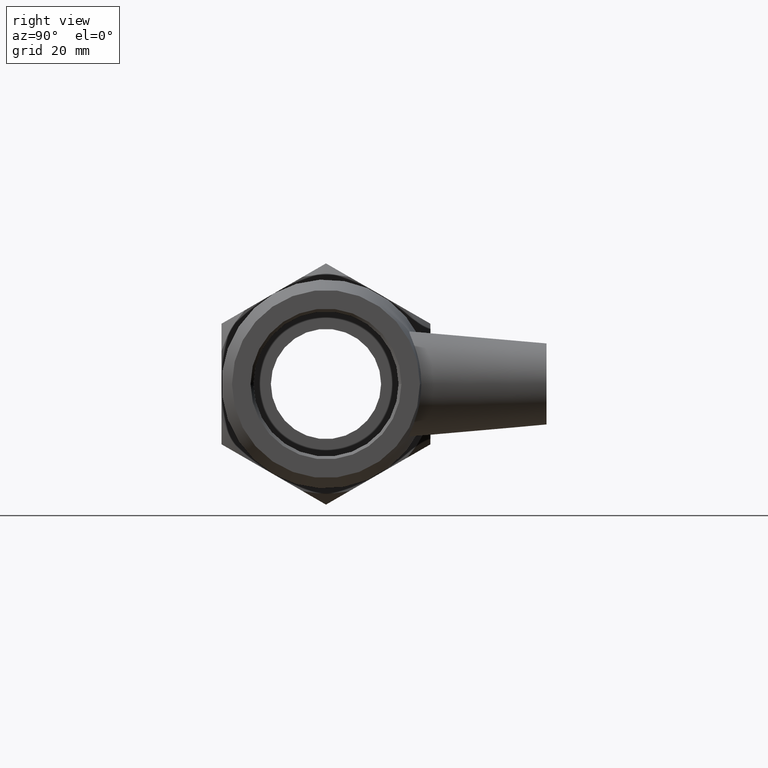
[diagram: clean part render]
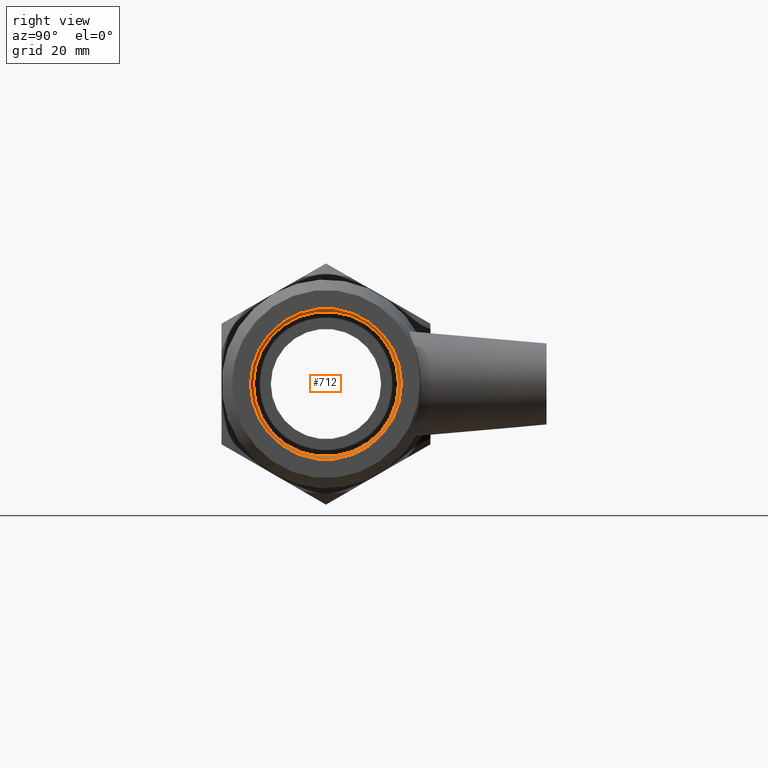
[diagram: same view with one face highlighted and labeled with its STEP entity id]
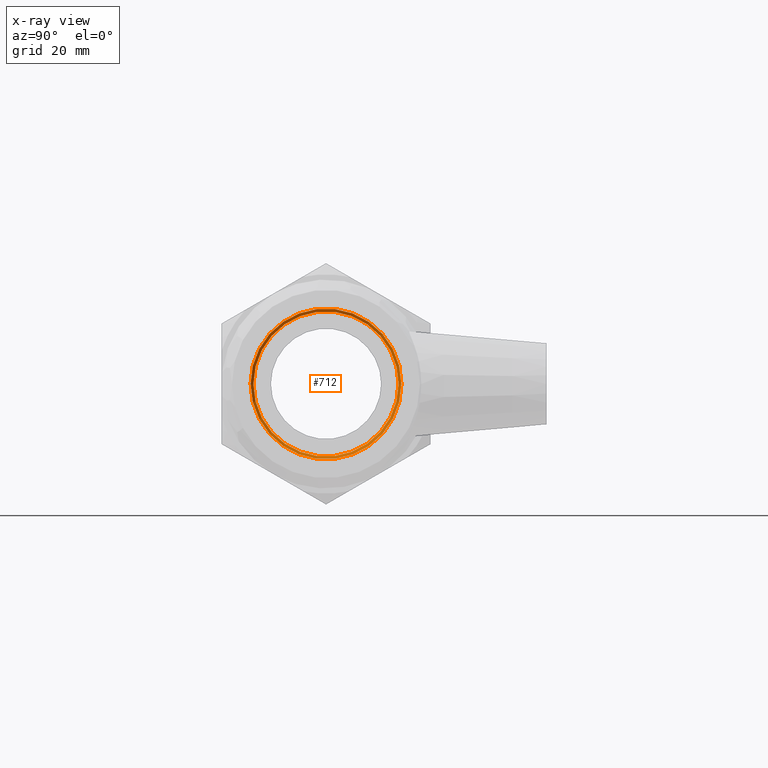
[diagram: x-ray of the same camera — body ghosted, the highlighted face saturated]
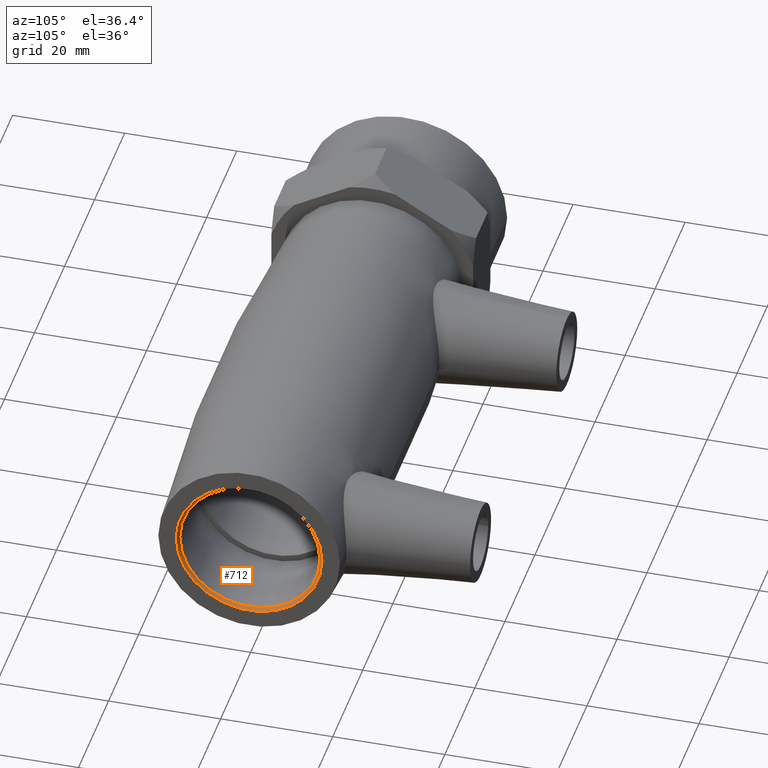
[diagram: same view with one face highlighted and labeled with its STEP entity id]
A machine part, right view. The second image highlights one B-rep face of the part: STEP entity #712.
The next image is the same camera in x-ray: the body ghosted, the highlighted face saturated — about 0% of this face is hidden behind the body in this view.
A second angle (auxiliary view) of the same face is appended — the face is thin or edge-on in the first view.
In plain terms, the highlighted conical surface has half-angle 45 deg.
Its self-contained STEP definition (entity closure, byte-faithful):
#123=FACE_BOUND('',#208,.T.);
#153=FACE_OUTER_BOUND('',#207,.T.);
#207=EDGE_LOOP('',(#502));
#208=EDGE_LOOP('',(#503));
#291=CIRCLE('',#769,13.);
#292=CIRCLE('',#770,12.5);
#336=VERTEX_POINT('',#1093);
#337=VERTEX_POINT('',#1095);
#407=EDGE_CURVE('',#336,#336,#291,.T.);
#408=EDGE_CURVE('',#337,#337,#292,.T.);
#502=ORIENTED_EDGE('',*,*,#407,.T.);
#503=ORIENTED_EDGE('',*,*,#408,.T.);
#692=CONICAL_SURFACE('',#768,12.75,45.0000000000001);
#712=ADVANCED_FACE('',(#153,#123),#692,.F.);
#768=AXIS2_PLACEMENT_3D('',#1092,#869,#870);
#769=AXIS2_PLACEMENT_3D('',#1094,#871,#872);
#770=AXIS2_PLACEMENT_3D('',#1096,#873,#874);
#869=DIRECTION('center_axis',(1.,0.,0.));
#870=DIRECTION('ref_axis',(0.,-1.,0.));
#871=DIRECTION('center_axis',(1.,0.,0.));
#872=DIRECTION('ref_axis',(0.,-1.,0.));
#873=DIRECTION('center_axis',(-1.,0.,0.));
#874=DIRECTION('ref_axis',(0.,-1.,0.));
#1092=CARTESIAN_POINT('Origin',(40.75,0.,0.));
#1093=CARTESIAN_POINT('',(41.,13.,1.59204083889156E-15));
#1094=CARTESIAN_POINT('Origin',(41.,0.,0.));
#1095=CARTESIAN_POINT('',(40.5,12.5,-1.53080849893419E-15));
#1096=CARTESIAN_POINT('Origin',(40.5,0.,0.));